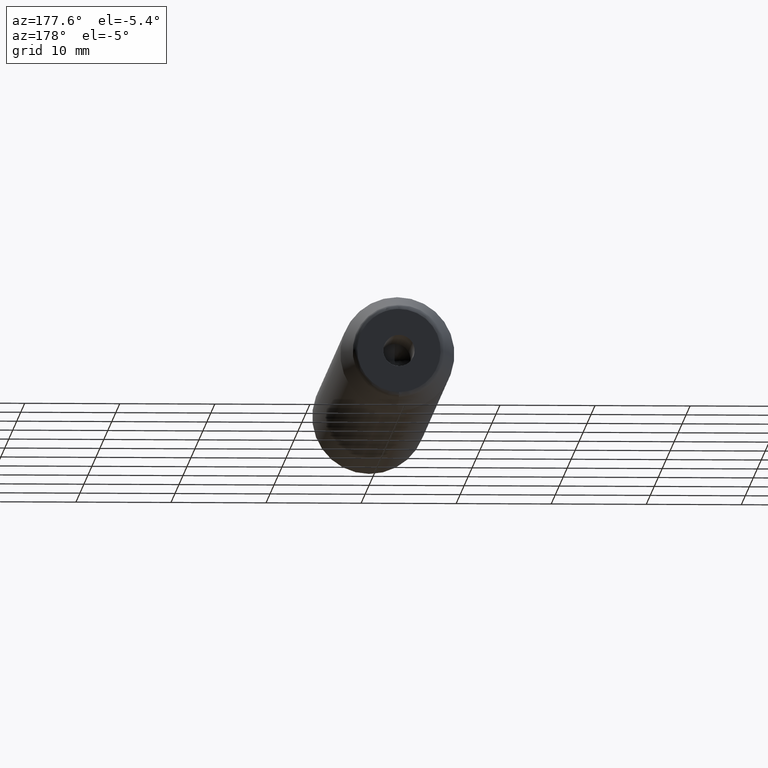
[diagram: clean part render]
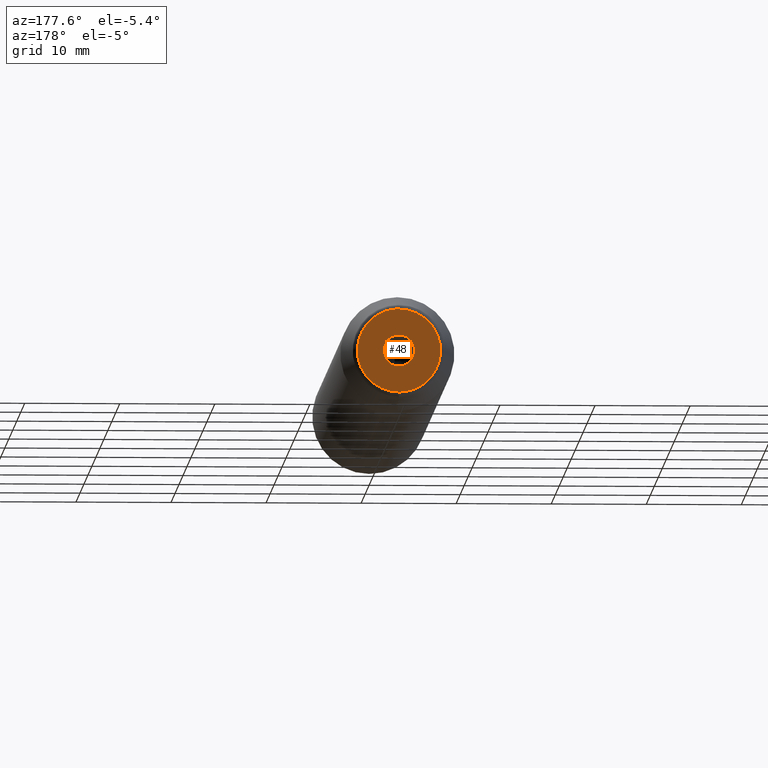
[diagram: same view with one face highlighted and labeled with its STEP entity id]
A machine part, auxiliary view. The second image highlights one B-rep face of the part: STEP entity #48.
In plain terms, the highlighted planar face has unit normal (0, 1, 0).
Its self-contained STEP definition (entity closure, byte-faithful):
#2 = ORIENTED_EDGE ( 'NONE', *, *, #70, .F. ) ;
#22 = ORIENTED_EDGE ( 'NONE', *, *, #168, .T. ) ;
#29 = EDGE_LOOP ( 'NONE', ( #22 ) ) ;
#32 = CARTESIAN_POINT ( 'NONE',  ( 5.483787781522369726E-16, 75.00000000000001421, -4.382404543304999400 ) ) ;
#40 = DIRECTION ( 'NONE',  ( -0.000000000000000000, -1.000000000000000000, -0.000000000000000000 ) ) ;
#42 = DIRECTION ( 'NONE',  ( 0.000000000000000000, 1.000000000000000000, 0.000000000000000000 ) ) ;
#48 = ADVANCED_FACE ( 'NONE', ( #231, #223 ), #254, .T. ) ;
#49 = VERTEX_POINT ( 'NONE', #284 ) ;
#59 = CARTESIAN_POINT ( 'NONE',  ( 0.000000000000000000, 75.00000000000001421, 0.000000000000000000 ) ) ;
#63 = CARTESIAN_POINT ( 'NONE',  ( 0.000000000000000000, 75.00000000000001421, 0.000000000000000000 ) ) ;
#69 = AXIS2_PLACEMENT_3D ( 'NONE', #59, #40, #128 ) ;
#70 = EDGE_CURVE ( 'NONE', #94, #74, #236, .T. ) ;
#74 = VERTEX_POINT ( 'NONE', #273 ) ;
#90 = EDGE_CURVE ( 'NONE', #74, #94, #290, .T. ) ;
#94 = VERTEX_POINT ( 'NONE', #225 ) ;
#98 = ORIENTED_EDGE ( 'NONE', *, *, #90, .F. ) ;
#125 = AXIS2_PLACEMENT_3D ( 'NONE', #63, #42, #202 ) ;
#128 = DIRECTION ( 'NONE',  ( 0.000000000000000000, 0.000000000000000000, 1.000000000000000000 ) ) ;
#144 = CARTESIAN_POINT ( 'NONE',  ( -8.764809086609997024, 75.00000000000000000, 4.382404543304999400 ) ) ;
#146 = CARTESIAN_POINT ( 'NONE',  ( 8.764809086609997024, 75.00000000000000000, -4.382404543304998512 ) ) ;
#165 = CARTESIAN_POINT ( 'NONE',  ( 0.000000000000000000, 75.00000000000001421, 4.382404543304999400 ) ) ;
#168 = EDGE_CURVE ( 'NONE', #49, #49, #194, .T. ) ;
#194 = CIRCLE ( 'NONE', #69, 1.649999999999998579 ) ;
#202 = DIRECTION ( 'NONE',  ( 0.000000000000000000, -0.000000000000000000, 1.000000000000000000 ) ) ;
#223 = FACE_OUTER_BOUND ( 'NONE', #238, .T. ) ;
#225 = CARTESIAN_POINT ( 'NONE',  ( 5.483787781522369726E-16, 75.00000000000001421, -4.382404543304999400 ) ) ;
#231 = FACE_BOUND ( 'NONE', #29, .T. ) ;
#236 =( BOUNDED_CURVE ( )  B_SPLINE_CURVE ( 3, ( #299, #146, #252, #250 ),
 .UNSPECIFIED., .F., .F. ) 
 B_SPLINE_CURVE_WITH_KNOTS ( ( 4, 4 ),
 ( 0.000000000000000000, 1.000000000000000000 ),
 .UNSPECIFIED. ) 
 CURVE ( )  GEOMETRIC_REPRESENTATION_ITEM ( )  RATIONAL_B_SPLINE_CURVE ( ( 1.000000000000000000, 0.3333333333333333703, 0.3333333333333333703, 1.000000000000000000 ) ) 
 REPRESENTATION_ITEM ( '' )  );
#238 = EDGE_LOOP ( 'NONE', ( #2, #98 ) ) ;
#250 = CARTESIAN_POINT ( 'NONE',  ( 0.000000000000000000, 75.00000000000001421, 4.382404543304999400 ) ) ;
#252 = CARTESIAN_POINT ( 'NONE',  ( 8.764809086609997024, 75.00000000000000000, 4.382404543304999400 ) ) ;
#254 = PLANE ( 'NONE',  #125 ) ;
#273 = CARTESIAN_POINT ( 'NONE',  ( 0.000000000000000000, 75.00000000000001421, 4.382404543304999400 ) ) ;
#284 = CARTESIAN_POINT ( 'NONE',  ( 0.000000000000000000, 75.00000000000001421, 1.649999999999998579 ) ) ;
#290 =( BOUNDED_CURVE ( )  B_SPLINE_CURVE ( 3, ( #165, #144, #297, #32 ),
 .UNSPECIFIED., .F., .F. ) 
 B_SPLINE_CURVE_WITH_KNOTS ( ( 4, 4 ),
 ( 0.000000000000000000, 1.000000000000000000 ),
 .UNSPECIFIED. ) 
 CURVE ( )  GEOMETRIC_REPRESENTATION_ITEM ( )  RATIONAL_B_SPLINE_CURVE ( ( 1.000000000000000000, 0.3333333333333333703, 0.3333333333333333703, 1.000000000000000000 ) ) 
 REPRESENTATION_ITEM ( '' )  );
#297 = CARTESIAN_POINT ( 'NONE',  ( -8.764809086609997024, 75.00000000000000000, -4.382404543305000288 ) ) ;
#299 = CARTESIAN_POINT ( 'NONE',  ( 5.483787781522369726E-16, 75.00000000000001421, -4.382404543304999400 ) ) ;